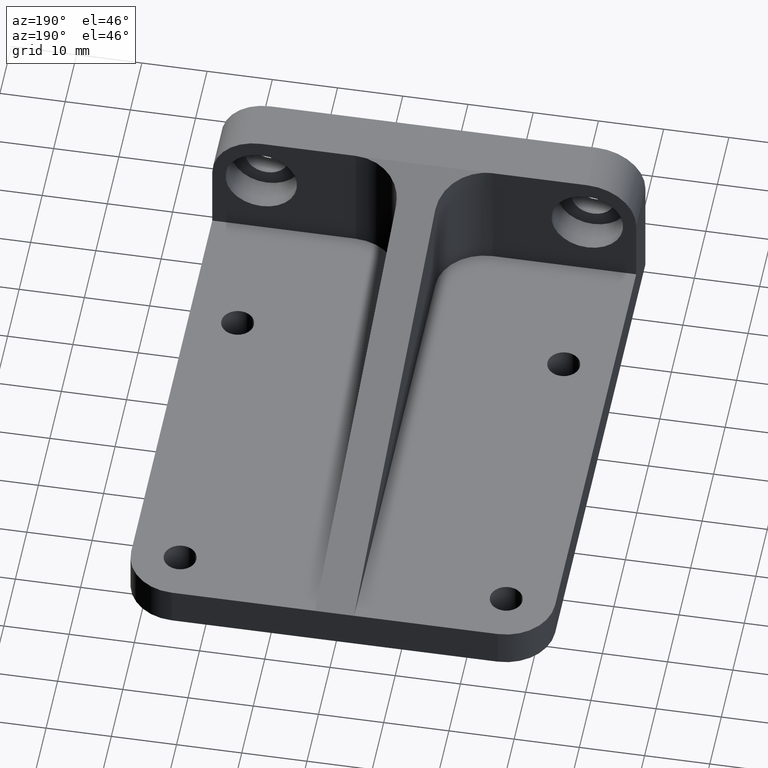
[diagram: clean part render]
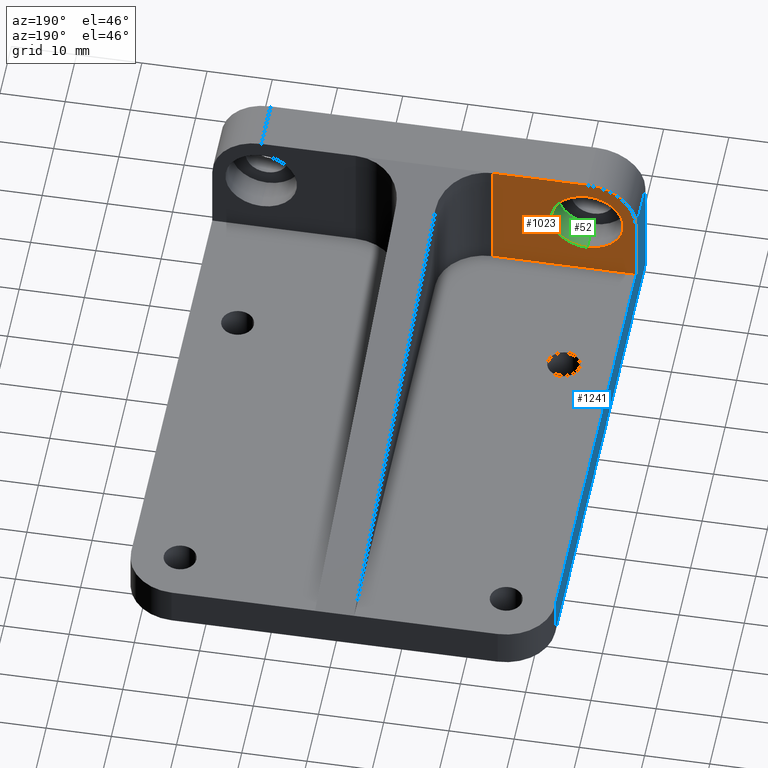
[diagram: same view with three faces highlighted in distinct colors, each labeled with its STEP entity id]
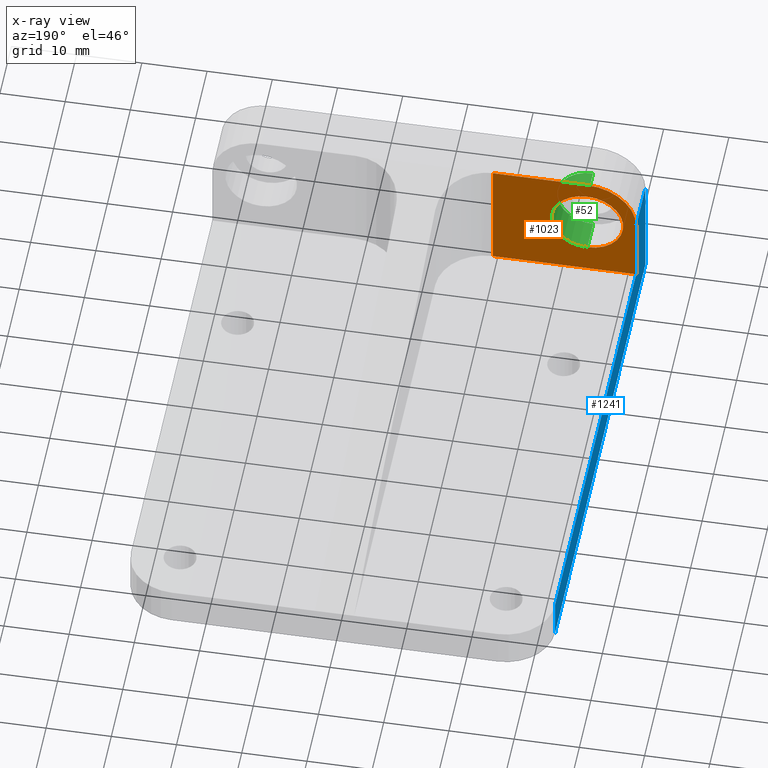
[diagram: x-ray of the same camera — body ghosted, the three highlighted faces saturated]
A machine part, auxiliary view with three faces highlighted in distinct colors.
The next image is the same camera in x-ray (body ghosted, the three faces saturated) — at least one of them is partly hidden behind the body in this view.
Their STEP definitions:

[orange] entity #1023 — the highlighted planar face has unit normal (0, -1, 0).
#1 = DIRECTION ( 'NONE',  ( 0.0000000000000000000, 0.0000000000000000000, 1.000000000000000000 ) ) ;
#44 = LINE ( 'NONE', #150, #921 ) ;
#56 = DIRECTION ( 'NONE',  ( 1.000000000000000000, 0.0000000000000000000, 0.0000000000000000000 ) ) ;
#66 = DIRECTION ( 'NONE',  ( 0.0000000000000000000, 0.0000000000000000000, -1.000000000000000000 ) ) ;
#72 = CARTESIAN_POINT ( 'NONE',  ( -32.50000000000000000, 7.999999999999996447, 6.000000000000005329 ) ) ;
#74 = ORIENTED_EDGE ( 'NONE', *, *, #1066, .T. ) ;
#79 = CARTESIAN_POINT ( 'NONE',  ( -24.99999999999999645, 7.999999999999998224, 16.00000000000000000 ) ) ;
#80 = VECTOR ( 'NONE', #56, 1000.000000000000000 ) ;
#132 = FACE_OUTER_BOUND ( 'NONE', #570, .T. ) ;
#142 = CARTESIAN_POINT ( 'NONE',  ( -10.49999999999998934, 7.999999999999996447, 6.000000000000005329 ) ) ;
#150 = CARTESIAN_POINT ( 'NONE',  ( -10.49999999999999112, 7.999999999999996447, 6.000000000000005329 ) ) ;
#212 = CARTESIAN_POINT ( 'NONE',  ( -25.00000000000000000, 7.999999999999996447, 24.00000000000000000 ) ) ;
#222 = ORIENTED_EDGE ( 'NONE', *, *, #638, .F. ) ;
#253 = DIRECTION ( 'NONE',  ( 0.0000000000000000000, 0.0000000000000000000, 1.000000000000000000 ) ) ;
#269 = VECTOR ( 'NONE', #415, 1000.000000000000000 ) ;
#275 = CARTESIAN_POINT ( 'NONE',  ( -25.00000000000000000, 7.999999999999996447, 16.50000000000000000 ) ) ;
#279 = VERTEX_POINT ( 'NONE', #922 ) ;
#298 = ORIENTED_EDGE ( 'NONE', *, *, #1040, .T. ) ;
#324 = PLANE ( 'NONE',  #1211 ) ;
#328 = VERTEX_POINT ( 'NONE', #819 ) ;
#343 = DIRECTION ( 'NONE',  ( -0.0000000000000000000, 1.000000000000000000, -0.0000000000000000000 ) ) ;
#353 = LINE ( 'NONE', #72, #822 ) ;
#357 = EDGE_LOOP ( 'NONE', ( #222, #998 ) ) ;
#382 = AXIS2_PLACEMENT_3D ( 'NONE', #79, #751, #1 ) ;
#404 = CIRCLE ( 'NONE', #382, 5.500000000000001776 ) ;
#415 = DIRECTION ( 'NONE',  ( -0.0000000000000000000, -0.0000000000000000000, 1.000000000000000000 ) ) ;
#508 = AXIS2_PLACEMENT_3D ( 'NONE', #275, #1128, #66 ) ;
#537 = AXIS2_PLACEMENT_3D ( 'NONE', #902, #343, #253 ) ;
#545 = CARTESIAN_POINT ( 'NONE',  ( -32.50000000000000000, 7.999999999999996447, 24.00000000000000000 ) ) ;
#547 = DIRECTION ( 'NONE',  ( 0.0000000000000000000, -0.0000000000000000000, -1.000000000000000000 ) ) ;
#548 = VERTEX_POINT ( 'NONE', #979 ) ;
#561 = EDGE_CURVE ( 'NONE', #950, #801, #1232, .T. ) ;
#570 = EDGE_LOOP ( 'NONE', ( #74, #298, #1021, #1178, #1223 ) ) ;
#590 = VERTEX_POINT ( 'NONE', #142 ) ;
#611 = CARTESIAN_POINT ( 'NONE',  ( -24.99999999999999645, 7.999999999999998224, 21.50000000000000000 ) ) ;
#617 = EDGE_CURVE ( 'NONE', #548, #590, #44, .T. ) ;
#625 = CIRCLE ( 'NONE', #508, 7.500000000000000000 ) ;
#638 = EDGE_CURVE ( 'NONE', #801, #950, #404, .T. ) ;
#705 = CARTESIAN_POINT ( 'NONE',  ( -32.50000000000000000, 7.999999999999996447, -83.39214591314942027 ) ) ;
#736 = DIRECTION ( 'NONE',  ( 0.0000000000000000000, -1.000000000000000000, 0.0000000000000000000 ) ) ;
#751 = DIRECTION ( 'NONE',  ( -0.0000000000000000000, 1.000000000000000000, -0.0000000000000000000 ) ) ;
#801 = VERTEX_POINT ( 'NONE', #611 ) ;
#819 = CARTESIAN_POINT ( 'NONE',  ( -32.50000000000000000, 7.999999999999996447, 16.50000000000000000 ) ) ;
#822 = VECTOR ( 'NONE', #1119, 1000.000000000000000 ) ;
#842 = LINE ( 'NONE', #1243, #269 ) ;
#902 = CARTESIAN_POINT ( 'NONE',  ( -24.99999999999999645, 7.999999999999998224, 16.00000000000000000 ) ) ;
#906 = CARTESIAN_POINT ( 'NONE',  ( -24.99999999999999645, 7.999999999999998224, 10.49999999999999822 ) ) ;
#921 = VECTOR ( 'NONE', #1109, 1000.000000000000000 ) ;
#922 = CARTESIAN_POINT ( 'NONE',  ( -32.50000000000000000, 7.999999999999996447, 6.000000000000005329 ) ) ;
#950 = VERTEX_POINT ( 'NONE', #906 ) ;
#979 = CARTESIAN_POINT ( 'NONE',  ( -10.49999999999998934, 7.999999999999996447, 24.00000000000000000 ) ) ;
#991 = VERTEX_POINT ( 'NONE', #212 ) ;
#998 = ORIENTED_EDGE ( 'NONE', *, *, #561, .F. ) ;
#1021 = ORIENTED_EDGE ( 'NONE', *, *, #1122, .T. ) ;
#1023 = ADVANCED_FACE ( 'NONE', ( #132, #1180 ), #324, .F. ) ;
#1037 = EDGE_CURVE ( 'NONE', #590, #279, #353, .T. ) ;
#1040 = EDGE_CURVE ( 'NONE', #328, #991, #625, .T. ) ;
#1066 = EDGE_CURVE ( 'NONE', #279, #328, #842, .T. ) ;
#1109 = DIRECTION ( 'NONE',  ( -0.0000000000000000000, -0.0000000000000000000, -1.000000000000000000 ) ) ;
#1119 = DIRECTION ( 'NONE',  ( -1.000000000000000000, 0.0000000000000000000, 0.0000000000000000000 ) ) ;
#1122 = EDGE_CURVE ( 'NONE', #991, #548, #1224, .T. ) ;
#1128 = DIRECTION ( 'NONE',  ( -0.0000000000000000000, 1.000000000000000000, -0.0000000000000000000 ) ) ;
#1178 = ORIENTED_EDGE ( 'NONE', *, *, #617, .T. ) ;
#1180 = FACE_BOUND ( 'NONE', #357, .T. ) ;
#1211 = AXIS2_PLACEMENT_3D ( 'NONE', #705, #736, #547 ) ;
#1223 = ORIENTED_EDGE ( 'NONE', *, *, #1037, .T. ) ;
#1224 = LINE ( 'NONE', #545, #80 ) ;
#1232 = CIRCLE ( 'NONE', #537, 5.500000000000001776 ) ;
#1243 = CARTESIAN_POINT ( 'NONE',  ( -32.50000000000000000, 7.999999999999996447, -83.39214591314942027 ) ) ;

[blue] entity #1241 — the highlighted planar face has unit normal (-1, 0, 0).
#3 = CARTESIAN_POINT ( 'NONE',  ( -32.50000000000000000, 0.0000000000000000000, 0.0000000000000000000 ) ) ;
#155 = EDGE_CURVE ( 'NONE', #198, #663, #219, .T. ) ;
#188 = CARTESIAN_POINT ( 'NONE',  ( -32.50000000000000000, 78.49999999999998579, 6.000000000000005329 ) ) ;
#191 = EDGE_CURVE ( 'NONE', #771, #1231, #696, .T. ) ;
#198 = VERTEX_POINT ( 'NONE', #454 ) ;
#199 = VECTOR ( 'NONE', #1186, 1000.000000000000000 ) ;
#219 = LINE ( 'NONE', #795, #199 ) ;
#237 = CARTESIAN_POINT ( 'NONE',  ( -32.50000000000000000, 0.0000000000000000000, 0.0000000000000000000 ) ) ;
#266 = DIRECTION ( 'NONE',  ( 0.0000000000000000000, 1.000000000000000000, -0.0000000000000000000 ) ) ;
#269 = VECTOR ( 'NONE', #415, 1000.000000000000000 ) ;
#279 = VERTEX_POINT ( 'NONE', #922 ) ;
#284 = VECTOR ( 'NONE', #913, 1000.000000000000000 ) ;
#314 = VECTOR ( 'NONE', #266, 1000.000000000000000 ) ;
#328 = VERTEX_POINT ( 'NONE', #819 ) ;
#333 = EDGE_CURVE ( 'NONE', #663, #1231, #1098, .T. ) ;
#354 = ORIENTED_EDGE ( 'NONE', *, *, #191, .T. ) ;
#362 = LINE ( 'NONE', #1003, #284 ) ;
#415 = DIRECTION ( 'NONE',  ( -0.0000000000000000000, -0.0000000000000000000, 1.000000000000000000 ) ) ;
#454 = CARTESIAN_POINT ( 'NONE',  ( -32.50000000000000000, -2.020667218593133100E-15, 16.50000000000000000 ) ) ;
#497 = EDGE_LOOP ( 'NONE', ( #837, #917, #524, #1155, #354, #967 ) ) ;
#500 = CARTESIAN_POINT ( 'NONE',  ( -32.50000000000000000, 78.49999999999998579, 0.0000000000000000000 ) ) ;
#506 = VECTOR ( 'NONE', #813, 1000.000000000000000 ) ;
#510 = DIRECTION ( 'NONE',  ( 0.0000000000000000000, 0.0000000000000000000, 1.000000000000000000 ) ) ;
#512 = DIRECTION ( 'NONE',  ( -1.000000000000000000, 0.0000000000000000000, 0.0000000000000000000 ) ) ;
#524 = ORIENTED_EDGE ( 'NONE', *, *, #1066, .F. ) ;
#595 = EDGE_CURVE ( 'NONE', #198, #328, #362, .T. ) ;
#663 = VERTEX_POINT ( 'NONE', #1148 ) ;
#696 = LINE ( 'NONE', #702, #1233 ) ;
#702 = CARTESIAN_POINT ( 'NONE',  ( -32.50000000000000000, 78.49999999999998579, 0.0000000000000000000 ) ) ;
#771 = VERTEX_POINT ( 'NONE', #188 ) ;
#795 = CARTESIAN_POINT ( 'NONE',  ( -32.50000000000000000, 0.0000000000000000000, 0.0000000000000000000 ) ) ;
#813 = DIRECTION ( 'NONE',  ( 0.0000000000000000000, 1.000000000000000000, 0.0000000000000000000 ) ) ;
#819 = CARTESIAN_POINT ( 'NONE',  ( -32.50000000000000000, 7.999999999999996447, 16.50000000000000000 ) ) ;
#837 = ORIENTED_EDGE ( 'NONE', *, *, #155, .F. ) ;
#842 = LINE ( 'NONE', #1243, #269 ) ;
#849 = FACE_OUTER_BOUND ( 'NONE', #497, .T. ) ;
#875 = DIRECTION ( 'NONE',  ( -0.0000000000000000000, 0.0000000000000000000, -1.000000000000000000 ) ) ;
#913 = DIRECTION ( 'NONE',  ( -0.0000000000000000000, 1.000000000000000000, -0.0000000000000000000 ) ) ;
#917 = ORIENTED_EDGE ( 'NONE', *, *, #595, .T. ) ;
#922 = CARTESIAN_POINT ( 'NONE',  ( -32.50000000000000000, 7.999999999999996447, 6.000000000000005329 ) ) ;
#964 = PLANE ( 'NONE',  #1111 ) ;
#967 = ORIENTED_EDGE ( 'NONE', *, *, #333, .F. ) ;
#974 = LINE ( 'NONE', #984, #314 ) ;
#984 = CARTESIAN_POINT ( 'NONE',  ( -32.50000000000000000, 7.999999999999996447, 6.000000000000005329 ) ) ;
#1003 = CARTESIAN_POINT ( 'NONE',  ( -32.50000000000000000, 7.999999999999996447, 16.50000000000000000 ) ) ;
#1066 = EDGE_CURVE ( 'NONE', #279, #328, #842, .T. ) ;
#1073 = EDGE_CURVE ( 'NONE', #279, #771, #974, .T. ) ;
#1098 = LINE ( 'NONE', #237, #506 ) ;
#1111 = AXIS2_PLACEMENT_3D ( 'NONE', #3, #512, #510 ) ;
#1148 = CARTESIAN_POINT ( 'NONE',  ( -32.50000000000000000, 0.0000000000000000000, 0.0000000000000000000 ) ) ;
#1155 = ORIENTED_EDGE ( 'NONE', *, *, #1073, .T. ) ;
#1186 = DIRECTION ( 'NONE',  ( -0.0000000000000000000, 1.224646799147353207E-16, -1.000000000000000000 ) ) ;
#1231 = VERTEX_POINT ( 'NONE', #500 ) ;
#1233 = VECTOR ( 'NONE', #875, 1000.000000000000000 ) ;
#1241 = ADVANCED_FACE ( 'NONE', ( #849 ), #964, .T. ) ;
#1243 = CARTESIAN_POINT ( 'NONE',  ( -32.50000000000000000, 7.999999999999996447, -83.39214591314942027 ) ) ;

[green] entity #52 — the highlighted cylindrical surface (edge-blend (fillet) strip) has radius 5.5 mm, axis along (-0, 1, -0).
#1 = DIRECTION ( 'NONE',  ( 0.0000000000000000000, 0.0000000000000000000, 1.000000000000000000 ) ) ;
#52 = ADVANCED_FACE ( 'NONE', ( #395 ), #752, .F. ) ;
#69 = CARTESIAN_POINT ( 'NONE',  ( -24.99999999999999645, 2.999999999999998224, 16.00000000000000000 ) ) ;
#79 = CARTESIAN_POINT ( 'NONE',  ( -24.99999999999999645, 7.999999999999998224, 16.00000000000000000 ) ) ;
#124 = ORIENTED_EDGE ( 'NONE', *, *, #501, .F. ) ;
#141 = EDGE_CURVE ( 'NONE', #1096, #801, #235, .T. ) ;
#220 = CIRCLE ( 'NONE', #1083, 5.499999999999998224 ) ;
#235 = LINE ( 'NONE', #428, #403 ) ;
#377 = DIRECTION ( 'NONE',  ( -0.0000000000000000000, 1.000000000000000000, -0.0000000000000000000 ) ) ;
#382 = AXIS2_PLACEMENT_3D ( 'NONE', #79, #751, #1 ) ;
#395 = FACE_OUTER_BOUND ( 'NONE', #954, .T. ) ;
#403 = VECTOR ( 'NONE', #632, 1000.000000000000000 ) ;
#404 = CIRCLE ( 'NONE', #382, 5.500000000000001776 ) ;
#428 = CARTESIAN_POINT ( 'NONE',  ( -24.99999999999999645, 7.999999999999998224, 21.50000000000000000 ) ) ;
#465 = CARTESIAN_POINT ( 'NONE',  ( -24.99999999999999645, 2.999999999999998224, 21.50000000000000000 ) ) ;
#501 = EDGE_CURVE ( 'NONE', #1096, #968, #220, .T. ) ;
#538 = AXIS2_PLACEMENT_3D ( 'NONE', #1144, #1183, #626 ) ;
#567 = CARTESIAN_POINT ( 'NONE',  ( -24.99999999999999645, 7.999999999999998224, 10.50000000000000000 ) ) ;
#611 = CARTESIAN_POINT ( 'NONE',  ( -24.99999999999999645, 7.999999999999998224, 21.50000000000000000 ) ) ;
#626 = DIRECTION ( 'NONE',  ( 0.0000000000000000000, 0.0000000000000000000, 1.000000000000000000 ) ) ;
#630 = ORIENTED_EDGE ( 'NONE', *, *, #638, .T. ) ;
#632 = DIRECTION ( 'NONE',  ( -0.0000000000000000000, 1.000000000000000000, -0.0000000000000000000 ) ) ;
#638 = EDGE_CURVE ( 'NONE', #801, #950, #404, .T. ) ;
#708 = ORIENTED_EDGE ( 'NONE', *, *, #141, .T. ) ;
#715 = EDGE_CURVE ( 'NONE', #968, #950, #1019, .T. ) ;
#749 = DIRECTION ( 'NONE',  ( 0.0000000000000000000, 0.0000000000000000000, 1.000000000000000000 ) ) ;
#751 = DIRECTION ( 'NONE',  ( -0.0000000000000000000, 1.000000000000000000, -0.0000000000000000000 ) ) ;
#752 = CYLINDRICAL_SURFACE ( 'NONE', #538, 5.499999999999998224 ) ;
#753 = DIRECTION ( 'NONE',  ( -0.0000000000000000000, 1.000000000000000000, -0.0000000000000000000 ) ) ;
#801 = VERTEX_POINT ( 'NONE', #611 ) ;
#880 = CARTESIAN_POINT ( 'NONE',  ( -24.99999999999999645, 2.999999999999998224, 10.50000000000000178 ) ) ;
#906 = CARTESIAN_POINT ( 'NONE',  ( -24.99999999999999645, 7.999999999999998224, 10.49999999999999822 ) ) ;
#950 = VERTEX_POINT ( 'NONE', #906 ) ;
#954 = EDGE_LOOP ( 'NONE', ( #1215, #124, #708, #630 ) ) ;
#968 = VERTEX_POINT ( 'NONE', #880 ) ;
#1001 = VECTOR ( 'NONE', #377, 1000.000000000000000 ) ;
#1019 = LINE ( 'NONE', #567, #1001 ) ;
#1083 = AXIS2_PLACEMENT_3D ( 'NONE', #69, #753, #749 ) ;
#1096 = VERTEX_POINT ( 'NONE', #465 ) ;
#1144 = CARTESIAN_POINT ( 'NONE',  ( -24.99999999999999645, 7.999999999999998224, 16.00000000000000000 ) ) ;
#1183 = DIRECTION ( 'NONE',  ( -0.0000000000000000000, 1.000000000000000000, -0.0000000000000000000 ) ) ;
#1215 = ORIENTED_EDGE ( 'NONE', *, *, #715, .F. ) ;